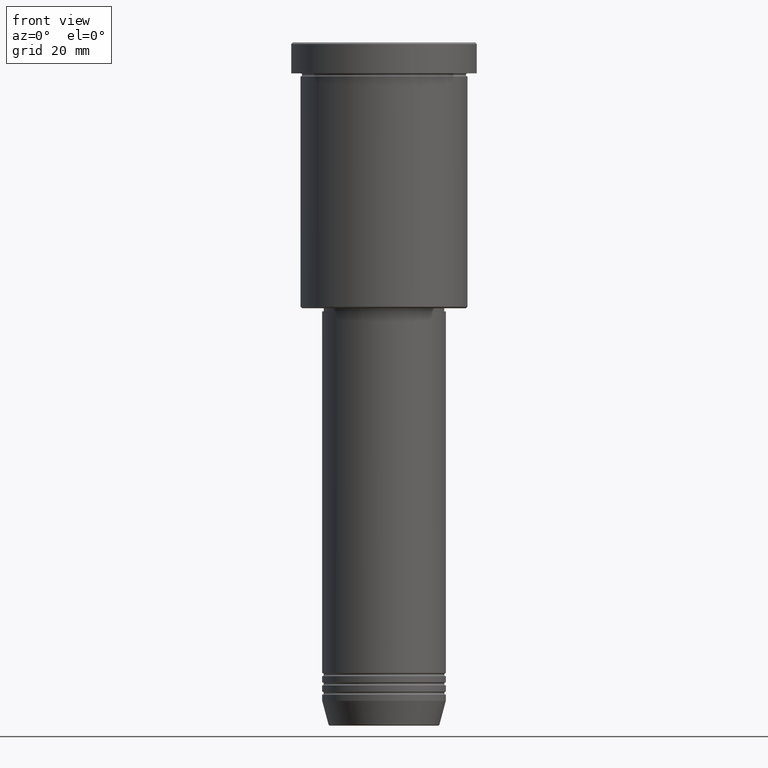
[diagram: clean part render]
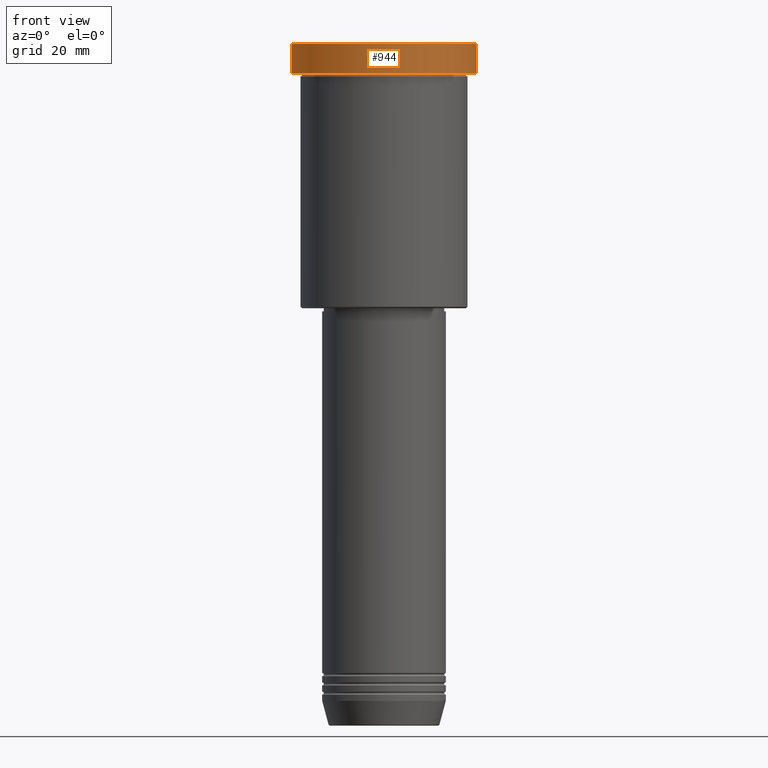
[diagram: same view with one face highlighted and labeled with its STEP entity id]
A machine part, front view. The second image highlights one B-rep face of the part: STEP entity #944.
In plain terms, the highlighted cylindrical surface (partial cylindrical patch) has radius 30 mm, axis along (-0, -0, 1).
Its self-contained STEP definition (entity closure, byte-faithful):
#16 = CARTESIAN_POINT ( 'NONE',  ( 30.00000000000000000, 0.000000000000000000, -9.999999999999992895 ) ) ;
#52 = CARTESIAN_POINT ( 'NONE',  ( -30.00000000000000000, 3.673940397442059178E-15, -0.4999999999999796274 ) ) ;
#150 = CARTESIAN_POINT ( 'NONE',  ( 0.000000000000000000, 0.000000000000000000, -9.999999999999992895 ) ) ;
#175 = DIRECTION ( 'NONE',  ( 1.000000000000000000, 0.000000000000000000, 0.000000000000000000 ) ) ;
#188 = VERTEX_POINT ( 'NONE', #52 ) ;
#218 = DIRECTION ( 'NONE',  ( -0.000000000000000000, -0.000000000000000000, 1.000000000000000000 ) ) ;
#251 = DIRECTION ( 'NONE',  ( -0.000000000000000000, -0.000000000000000000, 1.000000000000000000 ) ) ;
#281 = AXIS2_PLACEMENT_3D ( 'NONE', #957, #1050, #673 ) ;
#416 = DIRECTION ( 'NONE',  ( 1.000000000000000000, 0.000000000000000000, 0.000000000000000000 ) ) ;
#460 = VERTEX_POINT ( 'NONE', #515 ) ;
#467 = CIRCLE ( 'NONE', #842, 30.00000000000000000 ) ;
#512 = CARTESIAN_POINT ( 'NONE',  ( -30.00000000000000000, 3.673940397442059178E-15, -9.999999999999992895 ) ) ;
#514 = EDGE_CURVE ( 'NONE', #1135, #460, #1062, .T. ) ;
#515 = CARTESIAN_POINT ( 'NONE',  ( 30.00000000000000000, 0.000000000000000000, -0.4999999999999796274 ) ) ;
#519 = VECTOR ( 'NONE', #1154, 1000.000000000000000 ) ;
#525 = ORIENTED_EDGE ( 'NONE', *, *, #865, .T. ) ;
#535 = CARTESIAN_POINT ( 'NONE',  ( 30.00000000000000000, 0.000000000000000000, 0.000000000000000000 ) ) ;
#540 = LINE ( 'NONE', #791, #519 ) ;
#584 = VERTEX_POINT ( 'NONE', #512 ) ;
#588 = CYLINDRICAL_SURFACE ( 'NONE', #281, 30.00000000000000000 ) ;
#603 = ORIENTED_EDGE ( 'NONE', *, *, #646, .T. ) ;
#613 = VECTOR ( 'NONE', #251, 1000.000000000000000 ) ;
#624 = DIRECTION ( 'NONE',  ( 0.000000000000000000, 0.000000000000000000, -1.000000000000000000 ) ) ;
#646 = EDGE_CURVE ( 'NONE', #460, #188, #467, .T. ) ;
#673 = DIRECTION ( 'NONE',  ( 1.000000000000000000, 0.000000000000000000, 0.000000000000000000 ) ) ;
#725 = ORIENTED_EDGE ( 'NONE', *, *, #514, .T. ) ;
#743 = ORIENTED_EDGE ( 'NONE', *, *, #1059, .F. ) ;
#760 = FACE_OUTER_BOUND ( 'NONE', #915, .T. ) ;
#791 = CARTESIAN_POINT ( 'NONE',  ( -30.00000000000000000, 3.673940397442059178E-15, 0.000000000000000000 ) ) ;
#807 = CARTESIAN_POINT ( 'NONE',  ( 0.000000000000000000, 0.000000000000000000, -0.4999999999999796274 ) ) ;
#842 = AXIS2_PLACEMENT_3D ( 'NONE', #807, #624, #175 ) ;
#865 = EDGE_CURVE ( 'NONE', #584, #1135, #1068, .T. ) ;
#915 = EDGE_LOOP ( 'NONE', ( #743, #525, #725, #603 ) ) ;
#944 = ADVANCED_FACE ( 'NONE', ( #760 ), #588, .T. ) ;
#957 = CARTESIAN_POINT ( 'NONE',  ( 0.000000000000000000, 0.000000000000000000, 0.000000000000000000 ) ) ;
#958 = AXIS2_PLACEMENT_3D ( 'NONE', #150, #218, #416 ) ;
#1050 = DIRECTION ( 'NONE',  ( -0.000000000000000000, -0.000000000000000000, 1.000000000000000000 ) ) ;
#1059 = EDGE_CURVE ( 'NONE', #584, #188, #540, .T. ) ;
#1062 = LINE ( 'NONE', #535, #613 ) ;
#1068 = CIRCLE ( 'NONE', #958, 30.00000000000000000 ) ;
#1135 = VERTEX_POINT ( 'NONE', #16 ) ;
#1154 = DIRECTION ( 'NONE',  ( -0.000000000000000000, -0.000000000000000000, 1.000000000000000000 ) ) ;